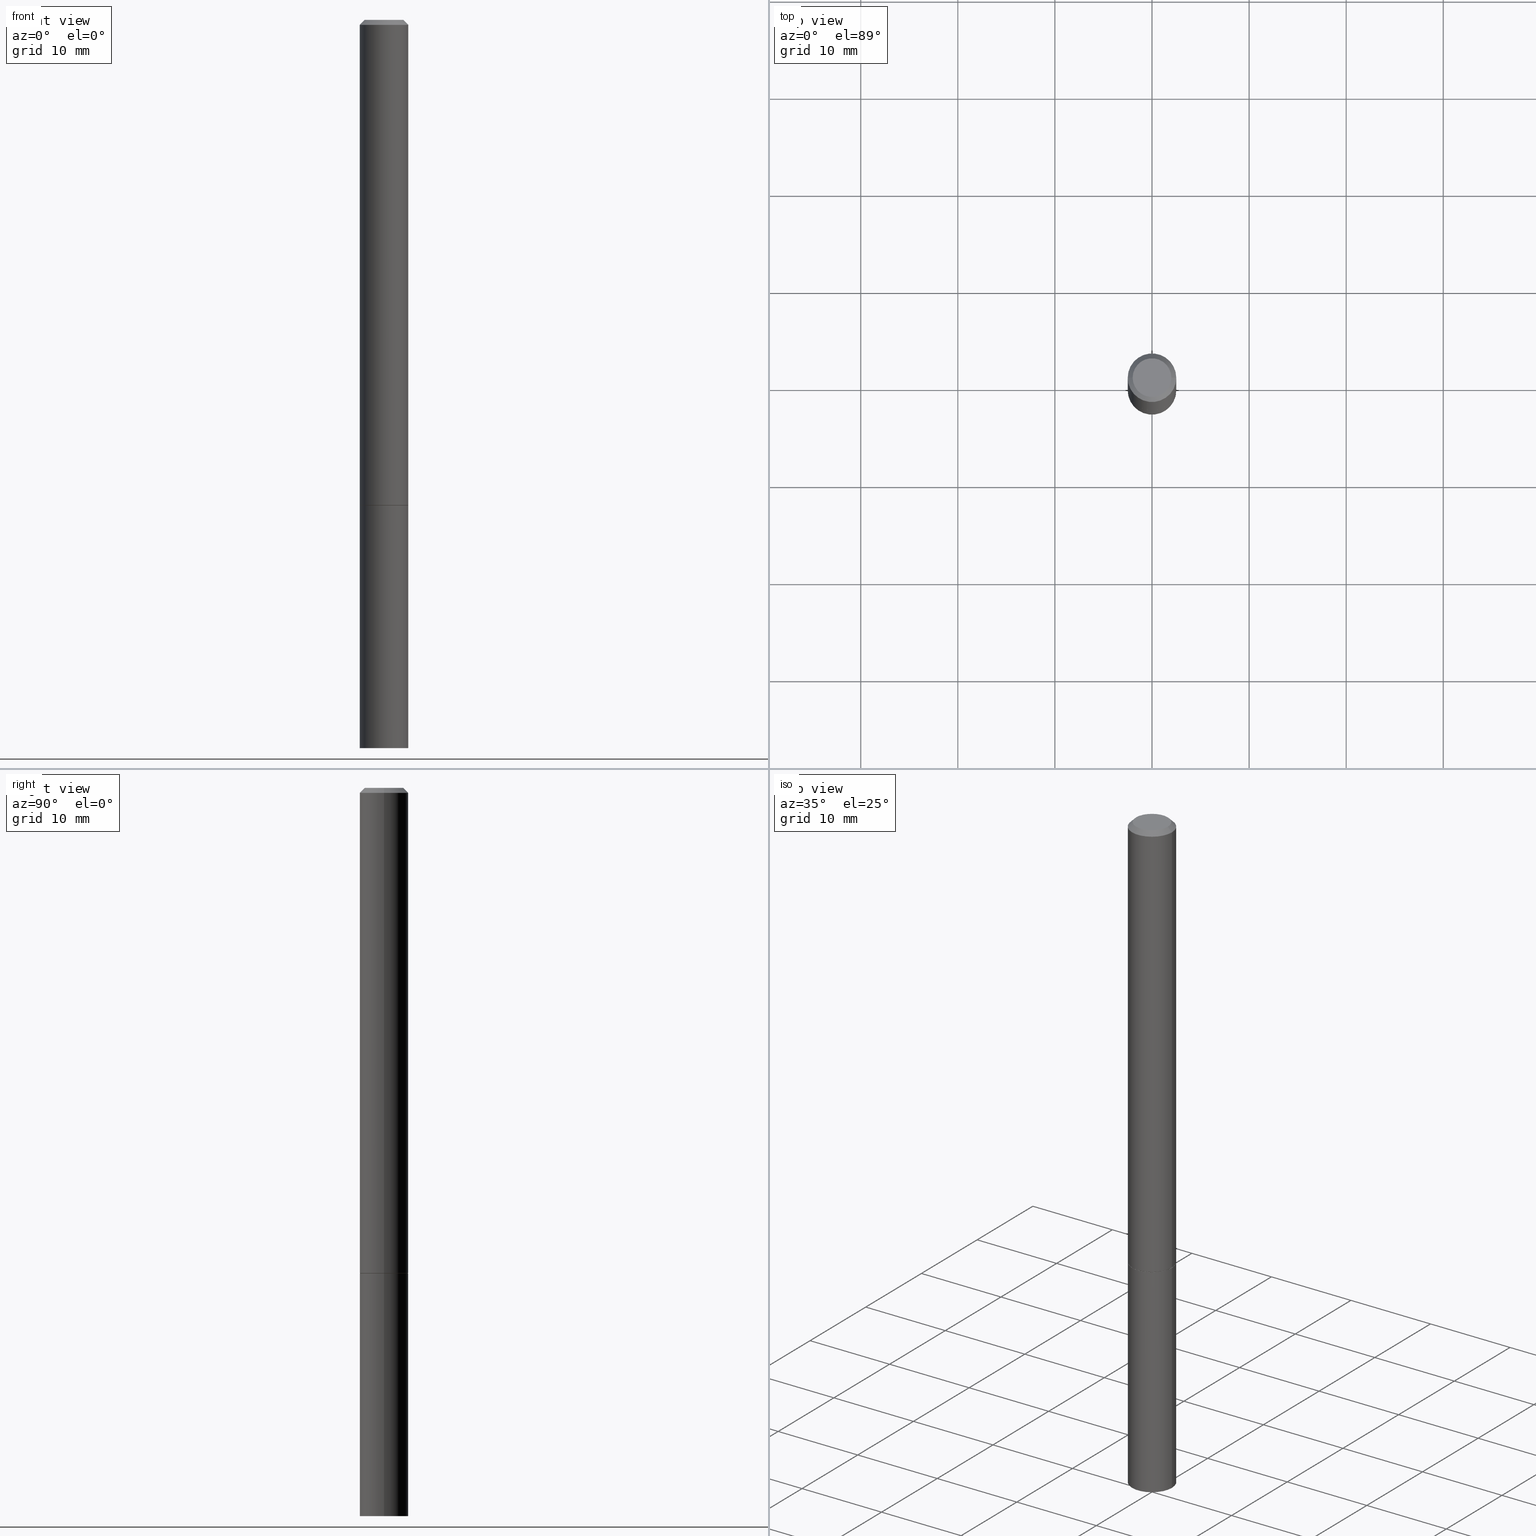
[diagram: canonical four-view strip — front | top / right | iso, engineering-drawing reading convention]
A machine part, canonical four-view strip (front | top / right | iso — engineering-drawing reading convention). The complete STEP part file that produces these views, byte-faithful:
ISO-10303-21;
HEADER;
FILE_DESCRIPTION (( 'STEP AP203' ),
    '1' );
FILE_NAME ('70553.STEP',
    '2024-02-29T03:38:05',
    ( '' ),
    ( '' ),
    'SwSTEP 2.0',
    'SolidWorks 2023',
    '' );
FILE_SCHEMA (( 'CONFIG_CONTROL_DESIGN' ));
ENDSEC;

DATA;
#1 = PERSON_AND_ORGANIZATION_ROLE ( 'design_owner' ) ;
#2 = CC_DESIGN_APPROVAL ( #165, ( #221 ) ) ;
#3 = PERSON_AND_ORGANIZATION ( #137, #82 ) ;
#4 = COORDINATED_UNIVERSAL_TIME_OFFSET ( 5, 0, .BEHIND. ) ;
#5 = EDGE_CURVE ( 'NONE', #17, #200, #208, .T. ) ;
#6 = CARTESIAN_POINT ( 'NONE',  ( -0.09844999999999987095, 6.995293233558177160E-16, -4.842691596355948437E-30 ) ) ;
#7 = APPROVAL_PERSON_ORGANIZATION ( #324, #270, #61 ) ;
#8 = CONICAL_SURFACE ( 'NONE', #211, 0.09844999999999975993, 0.7853981633974471688 ) ;
#9 = EDGE_CURVE ( 'NONE', #71, #230, #266, .T. ) ;
#10 = DIRECTION ( 'NONE',  ( 1.000000000000000000, -6.982962677686265922E-15, 0.000000000000000000 ) ) ;
#11 = EDGE_LOOP ( 'NONE', ( #204, #177, #260, #195 ) ) ;
#12 = PLANE ( 'NONE',  #60 ) ;
#13 = CC_DESIGN_PERSON_AND_ORGANIZATION_ASSIGNMENT ( #175, #40, ( #221 ) ) ;
#14 = CIRCLE ( 'NONE', #86, 0.09844999999999975993 ) ;
#15 = EDGE_CURVE ( 'NONE', #122, #71, #44, .T. ) ;
#16 = CARTESIAN_POINT ( 'NONE',  ( -0.09844999999999999585, -7.891784233068567007E-15, -1.968499999999999694 ) ) ;
#17 = VERTEX_POINT ( 'NONE', #242 ) ;
#18 = LOCAL_TIME ( 22, 38, 5.000000000000000000, #132 ) ;
#19 = LOCAL_TIME ( 22, 38, 5.000000000000000000, #196 ) ;
#20 = DIMENSIONAL_EXPONENTS ( 1.000000000000000000, 0.000000000000000000, 0.000000000000000000, 0.000000000000000000, 0.000000000000000000, 0.000000000000000000, 0.000000000000000000 ) ;
#21 = APPLICATION_PROTOCOL_DEFINITION ( 'international standard', 'config_control_design', 1994, #31 ) ;
#22 = CARTESIAN_POINT ( 'NONE',  ( 4.813905344975440714E-29, -6.872981015512730918E-15, -1.968499999999999694 ) ) ;
#23 = ADVANCED_FACE ( 'NONE', ( #212 ), #178, .T. ) ;
#24 = VECTOR ( 'NONE', #245, 39.37007874015748143 ) ;
#25 = PLANE ( 'NONE',  #138 ) ;
#26 = COORDINATED_UNIVERSAL_TIME_OFFSET ( 5, 0, .BEHIND. ) ;
#27 = DIRECTION ( 'NONE',  ( -1.000000000000000000, 6.982962677686265922E-15, -4.876176775795935793E-29 ) ) ;
#28 = CARTESIAN_POINT ( 'NONE',  ( -0.07844999999999978380, 5.827282354529171197E-16, -3.953055038153088662E-30 ) ) ;
#29 = CARTESIAN_POINT ( 'NONE',  ( -0.09844999999999999585, -7.891784233068567007E-15, -2.952799999999999869 ) ) ;
#30 = ORIENTED_EDGE ( 'NONE', *, *, #231, .F. ) ;
#31 = APPLICATION_CONTEXT ( 'configuration controlled 3d designs of mechanical parts and assemblies' ) ;
#32 = ORIENTED_EDGE ( 'NONE', *, *, #9, .F. ) ;
#33 = CIRCLE ( 'NONE', #220, 0.07844999999999978380 ) ;
#34 = FACE_OUTER_BOUND ( 'NONE', #201, .T. ) ;
#35 = ORIENTED_EDGE ( 'NONE', *, *, #231, .T. ) ;
#36 = CARTESIAN_POINT ( 'NONE',  ( 6.874726756182609764E-16, 0.09844999999999311247, -1.968500000000000139 ) ) ;
#37 = CONICAL_SURFACE ( 'NONE', #351, 0.09744999999999999496, 0.7853981633974141952 ) ;
#38 = CYLINDRICAL_SURFACE ( 'NONE', #358, 0.09844999999999987095 ) ;
#39 = EDGE_LOOP ( 'NONE', ( #67, #114 ) ) ;
#40 = PERSON_AND_ORGANIZATION_ROLE ( 'creator' ) ;
#41 = EDGE_CURVE ( 'NONE', #49, #343, #248, .T. ) ;
#42 = DIRECTION ( 'NONE',  ( 1.000000000000000000, -6.982962677686266711E-15, 0.000000000000000000 ) ) ;
#43 = CARTESIAN_POINT ( 'NONE',  ( 7.220980290903470182E-29, -1.030964609733603853E-14, -2.952799999999999869 ) ) ;
#44 = CIRCLE ( 'NONE', #188, 0.09844999999999999585 ) ;
#45 = LOCAL_TIME ( 22, 38, 5.000000000000000000, #26 ) ;
#46 = ADVANCED_BREP_SHAPE_REPRESENTATION ( '70553', ( #97, #341, #362 ), #127 ) ;
#47 = CC_DESIGN_SECURITY_CLASSIFICATION ( #315, ( #221 ) ) ;
#48 = DIRECTION ( 'NONE',  ( 1.000000000000000000, -6.982962677686265922E-15, 4.876176775795935793E-29 ) ) ;
#49 = VERTEX_POINT ( 'NONE', #28 ) ;
#50 = CARTESIAN_POINT ( 'NONE',  ( 4.811459876169255671E-29, -6.869489534173887122E-15, -1.967499999999999805 ) ) ;
#51 = EDGE_LOOP ( 'NONE', ( #117, #238, #262, #313 ) ) ;
#52 = CIRCLE ( 'NONE', #100, 0.09744999999999999496 ) ;
#53 = LOCAL_TIME ( 22, 38, 5.000000000000000000, #4 ) ;
#54 = DATE_AND_TIME ( #216, #246 ) ;
#55 = DIRECTION ( 'NONE',  ( -2.445468806185136597E-29, 3.491481338843145583E-15, 1.000000000000000000 ) ) ;
#56 = CARTESIAN_POINT ( 'NONE',  ( 0.09744999999999999496, -7.553470728453258253E-15, -1.968499999999999694 ) ) ;
#57 = DESIGN_CONTEXT ( 'detailed design', #336, 'design' ) ;
#58 = VECTOR ( 'NONE', #293, 39.37007874015748143 ) ;
#59 = EDGE_LOOP ( 'NONE', ( #108, #280 ) ) ;
#60 = AXIS2_PLACEMENT_3D ( 'NONE', #357, #151, #48 ) ;
#61 = APPROVAL_ROLE ( '' ) ;
#62 = ORIENTED_EDGE ( 'NONE', *, *, #41, .F. ) ;
#63 = FACE_OUTER_BOUND ( 'NONE', #287, .T. ) ;
#64 = CARTESIAN_POINT ( 'NONE',  ( 0.000000000000000000, 0.000000000000000000, 0.000000000000000000 ) ) ;
#65 = ORIENTED_EDGE ( 'NONE', *, *, #189, .T. ) ;
#66 = PRODUCT_DEFINITION_SHAPE ( 'NONE', 'NONE',  #308 ) ;
#67 = ORIENTED_EDGE ( 'NONE', *, *, #265, .F. ) ;
#68 = DIRECTION ( 'NONE',  ( -0.7071067811865232589, 7.493145998870265808E-15, 0.7071067811865715536 ) ) ;
#69 = CARTESIAN_POINT ( 'NONE',  ( 0.09844999999999975993, -7.452456546574685329E-16, -0.02000000000000002123 ) ) ;
#70 = CYLINDRICAL_SURFACE ( 'NONE', #292, 0.09844999999999999585 ) ;
#71 = VERTEX_POINT ( 'NONE', #29 ) ;
#72 = DIRECTION ( 'NONE',  ( 1.000000000000000000, -6.982962677686264344E-15, 0.000000000000000000 ) ) ;
#73 = EDGE_LOOP ( 'NONE', ( #284, #139, #173, #180 ) ) ;
#74 = DIRECTION ( 'NONE',  ( -2.445468806185136597E-29, 3.491481338843145583E-15, 1.000000000000000000 ) ) ;
#75 = PRODUCT_RELATED_PRODUCT_CATEGORY ( 'detail', '', ( #235 ) ) ;
#76 = DIRECTION ( 'NONE',  ( -2.445468806185136597E-29, 3.491481338843145583E-15, 1.000000000000000000 ) ) ;
#77 = PLANE ( 'NONE',  #226 ) ;
#78 = DATE_TIME_ROLE ( 'creation_date' ) ;
#79 = CARTESIAN_POINT ( 'NONE',  ( 0.09844999999999999585, -7.556962209792099682E-15, -1.967499999999999805 ) ) ;
#80 = ADVANCED_FACE ( 'NONE', ( #130 ), #77, .T. ) ;
#81 = FACE_OUTER_BOUND ( 'NONE', #51, .T. ) ;
#82 = ORGANIZATION ( 'UNSPECIFIED', 'UNSPECIFIED', '' ) ;
#83 = DIRECTION ( 'NONE',  ( 0.000000000000000000, 0.000000000000000000, 1.000000000000000000 ) ) ;
#84 = LINE ( 'NONE', #6, #215 ) ;
#85 = ORIENTED_EDGE ( 'NONE', *, *, #131, .F. ) ;
#86 = AXIS2_PLACEMENT_3D ( 'NONE', #316, #279, #194 ) ;
#87 = PLANE ( 'NONE',  #143 ) ;
#88 = VERTEX_POINT ( 'NONE', #275 ) ;
#89 = UNCERTAINTY_MEASURE_WITH_UNIT (LENGTH_MEASURE( 1.000000000000000082E-05 ), #299, 'distance_accuracy_value', 'NONE');
#90 = ORIENTED_EDGE ( 'NONE', *, *, #5, .T. ) ;
#91 = EDGE_CURVE ( 'NONE', #149, #113, #303, .T. ) ;
#92 = CARTESIAN_POINT ( 'NONE',  ( 0.09744999999999999496, -7.553470728453258253E-15, -1.968499999999999694 ) ) ;
#93 = ORIENTED_EDGE ( 'NONE', *, *, #241, .T. ) ;
#94 = VECTOR ( 'NONE', #68, 39.37007874015748854 ) ;
#95 = DIRECTION ( 'NONE',  ( 1.000000000000000000, -6.982962677686265922E-15, 0.000000000000000000 ) ) ;
#96 = ORIENTED_EDGE ( 'NONE', *, *, #131, .T. ) ;
#97 = MANIFOLD_SOLID_BREP ( 'Body-Move/Copy2[1]', #306 ) ;
#98 = CC_DESIGN_DATE_AND_TIME_ASSIGNMENT ( #363, #78, ( #308 ) ) ;
#99 = DIRECTION ( 'NONE',  ( -2.445468806185136877E-29, 3.491481338843145188E-15, 1.000000000000000000 ) ) ;
#100 = AXIS2_PLACEMENT_3D ( 'NONE', #329, #274, #361 ) ;
#101 = CARTESIAN_POINT ( 'NONE',  ( 0.09844999999999999585, -6.874726756182129545E-16, 4.800596035771099214E-30 ) ) ;
#102 = CC_DESIGN_PERSON_AND_ORGANIZATION_ASSIGNMENT ( #109, #1, ( #235 ) ) ;
#103 = DIRECTION ( 'NONE',  ( -2.445468806185136597E-29, 3.491481338843145583E-15, 1.000000000000000000 ) ) ;
#104 = DIRECTION ( 'NONE',  ( -2.445468806185136597E-29, 3.491481338843145583E-15, 1.000000000000000000 ) ) ;
#105 = DIRECTION ( 'NONE',  ( -1.000000000000000000, 6.982962677686266711E-15, 0.000000000000000000 ) ) ;
#106 = APPLICATION_PROTOCOL_DEFINITION ( 'international standard', 'config_control_design', 1994, #336 ) ;
#107 = DIRECTION ( 'NONE',  ( 1.000000000000000000, -6.982962677686266711E-15, 4.876176775795936353E-29 ) ) ;
#108 = ORIENTED_EDGE ( 'NONE', *, *, #15, .F. ) ;
#109 = PERSON_AND_ORGANIZATION ( #137, #82 ) ;
#110 = EDGE_LOOP ( 'NONE', ( #85, #90, #65, #62 ) ) ;
#111 = AXIS2_PLACEMENT_3D ( 'NONE', #359, #328, #307 ) ;
#112 = CALENDAR_DATE ( 2024, 28, 2 ) ;
#113 = VERTEX_POINT ( 'NONE', #79 ) ;
#114 = ORIENTED_EDGE ( 'NONE', *, *, #291, .F. ) ;
#115 = DATE_AND_TIME ( #135, #45 ) ;
#116 = CARTESIAN_POINT ( 'NONE',  ( 4.813905344975440714E-29, -6.872981015512730918E-15, -1.968499999999999694 ) ) ;
#117 = ORIENTED_EDGE ( 'NONE', *, *, #5, .F. ) ;
#118 = AXIS2_PLACEMENT_3D ( 'NONE', #310, #55, #164 ) ;
#119 = CARTESIAN_POINT ( 'NONE',  ( 7.220980290903470182E-29, -1.030964609733603853E-14, -2.952799999999999869 ) ) ;
#120 = DATE_AND_TIME ( #205, #53 ) ;
#121 = DIRECTION ( 'NONE',  ( 1.000000000000000000, -6.982962677686266711E-15, 4.876176775795936353E-29 ) ) ;
#122 = VERTEX_POINT ( 'NONE', #214 ) ;
#123 = CARTESIAN_POINT ( 'NONE',  ( -0.09844999999999999585, 6.995293233558186035E-16, -4.842691596355954042E-30 ) ) ;
#124 = DIRECTION ( 'NONE',  ( 1.000000000000000000, -6.982962677686265922E-15, 0.000000000000000000 ) ) ;
#125 = EDGE_CURVE ( 'NONE', #113, #348, #325, .T. ) ;
#126 = DIRECTION ( 'NONE',  ( 1.000000000000000000, -6.982962677686274599E-15, 0.000000000000000000 ) ) ;
#127 =( GEOMETRIC_REPRESENTATION_CONTEXT ( 3 ) GLOBAL_UNCERTAINTY_ASSIGNED_CONTEXT ( ( #89 ) ) GLOBAL_UNIT_ASSIGNED_CONTEXT ( ( #299, #157, #302 ) ) REPRESENTATION_CONTEXT ( 'NONE', 'WORKASPACE' ) );
#128 = CYLINDRICAL_SURFACE ( 'NONE', #156, 0.09844999999999999585 ) ;
#129 = ORIENTED_EDGE ( 'NONE', *, *, #339, .T. ) ;
#130 = FACE_OUTER_BOUND ( 'NONE', #59, .T. ) ;
#131 = EDGE_CURVE ( 'NONE', #17, #49, #33, .T. ) ;
#132 = COORDINATED_UNIVERSAL_TIME_OFFSET ( 5, 0, .BEHIND. ) ;
#133 = CIRCLE ( 'NONE', #314, 0.09844999999999999585 ) ;
#134 = CARTESIAN_POINT ( 'NONE',  ( -0.09844999999999975993, 6.176430488413482758E-16, -0.02000000000000002123 ) ) ;
#135 = CALENDAR_DATE ( 2024, 28, 2 ) ;
#136 = CARTESIAN_POINT ( 'NONE',  ( 6.874726756182850367E-16, 0.09844999999998968465, -2.952800000000000313 ) ) ;
#137 = PERSON ( 'UNSPECIFIED', 'UNSPECIFIED', 'UNSPECIFIED', ('UNSPECIFIED'), ('UNSPECIFIED'), ('UNSPECIFIED') ) ;
#138 = AXIS2_PLACEMENT_3D ( 'NONE', #366, #365, #27 ) ;
#139 = ORIENTED_EDGE ( 'NONE', *, *, #158, .T. ) ;
#140 = ORIENTED_EDGE ( 'NONE', *, *, #15, .T. ) ;
#141 = CARTESIAN_POINT ( 'NONE',  ( 0.000000000000000000, 0.000000000000000000, 0.000000000000000000 ) ) ;
#142 = ORIENTED_EDGE ( 'NONE', *, *, #332, .F. ) ;
#143 = AXIS2_PLACEMENT_3D ( 'NONE', #36, #237, #354 ) ;
#144 = PERSON_AND_ORGANIZATION_ROLE ( 'classification_officer' ) ;
#145 = FACE_OUTER_BOUND ( 'NONE', #73, .T. ) ;
#146 = ORIENTED_EDGE ( 'NONE', *, *, #176, .T. ) ;
#147 = DIRECTION ( 'NONE',  ( 1.000000000000000000, -6.982962677686264344E-15, 0.000000000000000000 ) ) ;
#148 = FACE_OUTER_BOUND ( 'NONE', #39, .T. ) ;
#149 = VERTEX_POINT ( 'NONE', #92 ) ;
#150 = EDGE_CURVE ( 'NONE', #113, #200, #286, .T. ) ;
#151 = DIRECTION ( 'NONE',  ( -2.438088387897960049E-29, 3.491481338843145188E-15, 1.000000000000000000 ) ) ;
#152 = ORIENTED_EDGE ( 'NONE', *, *, #176, .F. ) ;
#153 = ADVANCED_FACE ( 'NONE', ( #34 ), #38, .T. ) ;
#154 = FACE_OUTER_BOUND ( 'NONE', #222, .T. ) ;
#155 = APPROVAL_DATE_TIME ( #267, #270 ) ;
#156 = AXIS2_PLACEMENT_3D ( 'NONE', #159, #184, #305 ) ;
#157 =( NAMED_UNIT ( * ) PLANE_ANGLE_UNIT ( ) SI_UNIT ( $, .RADIAN. ) );
#158 = EDGE_CURVE ( 'NONE', #348, #343, #84, .T. ) ;
#159 = CARTESIAN_POINT ( 'NONE',  ( 0.000000000000000000, 0.000000000000000000, 0.000000000000000000 ) ) ;
#160 = CC_DESIGN_DATE_AND_TIME_ASSIGNMENT ( #120, #344, ( #315 ) ) ;
#161 = APPROVAL_STATUS ( 'not_yet_approved' ) ;
#162 = FACE_OUTER_BOUND ( 'NONE', #345, .T. ) ;
#163 = AXIS2_PLACEMENT_3D ( 'NONE', #116, #352, #95 ) ;
#164 = DIRECTION ( 'NONE',  ( 1.000000000000000000, -6.982962677686265922E-15, 4.876176775795935793E-29 ) ) ;
#165 = APPROVAL ( #161, 'UNSPECIFIED' ) ;
#166 = DIRECTION ( 'NONE',  ( -2.445468806185136877E-29, 3.491481338843145188E-15, 1.000000000000000000 ) ) ;
#167 = EDGE_LOOP ( 'NONE', ( #140, #225, #152, #229 ) ) ;
#168 = DIRECTION ( 'NONE',  ( -2.445468806185136597E-29, 3.491481338843145583E-15, 1.000000000000000000 ) ) ;
#169 = LENGTH_MEASURE_WITH_UNIT ( LENGTH_MEASURE( 0.02539999999999999897 ), #281 );
#170 = AXIS2_PLACEMENT_3D ( 'NONE', #330, #76, #185 ) ;
#171 = SECURITY_CLASSIFICATION_LEVEL ( 'unclassified' ) ;
#172 = DIRECTION ( 'NONE',  ( -2.445468806185136597E-29, 3.491481338843145583E-15, 1.000000000000000000 ) ) ;
#173 = ORIENTED_EDGE ( 'NONE', *, *, #189, .F. ) ;
#174 = AXIS2_PLACEMENT_3D ( 'NONE', #271, #104, #217 ) ;
#175 = PERSON_AND_ORGANIZATION ( #137, #82 ) ;
#176 = EDGE_CURVE ( 'NONE', #289, #230, #228, .T. ) ;
#177 = ORIENTED_EDGE ( 'NONE', *, *, #219, .T. ) ;
#178 = CONICAL_SURFACE ( 'NONE', #111, 0.09844999999999975993, 0.7853981633974471688 ) ;
#179 = DIRECTION ( 'NONE',  ( -2.445468806185136597E-29, 3.491481338843145583E-15, 1.000000000000000000 ) ) ;
#180 = ORIENTED_EDGE ( 'NONE', *, *, #150, .F. ) ;
#181 = CC_DESIGN_PERSON_AND_ORGANIZATION_ASSIGNMENT ( #278, #144, ( #315 ) ) ;
#182 = LINE ( 'NONE', #101, #264 ) ;
#183 = AXIS2_PLACEMENT_3D ( 'NONE', #347, #349, #42 ) ;
#184 = DIRECTION ( 'NONE',  ( -2.445468806185136597E-29, 3.491481338843145583E-15, 1.000000000000000000 ) ) ;
#185 = DIRECTION ( 'NONE',  ( 1.000000000000000000, -6.982962677686265922E-15, 0.000000000000000000 ) ) ;
#186 = CC_DESIGN_PERSON_AND_ORGANIZATION_ASSIGNMENT ( #3, #272, ( #308 ) ) ;
#187 = MECHANICAL_CONTEXT ( 'NONE', #31, 'mechanical' ) ;
#188 = AXIS2_PLACEMENT_3D ( 'NONE', #43, #296, #126 ) ;
#189 = EDGE_CURVE ( 'NONE', #200, #343, #14, .T. ) ;
#190 = APPROVAL_STATUS ( 'not_yet_approved' ) ;
#191 = CARTESIAN_POINT ( 'NONE',  ( 4.890937612370278413E-31, -6.982962677686297772E-17, -0.02000000000000002123 ) ) ;
#192 = AXIS2_PLACEMENT_3D ( 'NONE', #253, #224, #342 ) ;
#193 = COORDINATED_UNIVERSAL_TIME_OFFSET ( 5, 0, .BEHIND. ) ;
#194 = DIRECTION ( 'NONE',  ( 1.000000000000000000, -6.982962677686266711E-15, 0.000000000000000000 ) ) ;
#195 = ORIENTED_EDGE ( 'NONE', *, *, #91, .F. ) ;
#196 = COORDINATED_UNIVERSAL_TIME_OFFSET ( 5, 0, .BEHIND. ) ;
#197 = CC_DESIGN_APPROVAL ( #250, ( #308 ) ) ;
#198 = CARTESIAN_POINT ( 'NONE',  ( 0.09844999999999987095, -6.874726756182120670E-16, 4.800596035771092908E-30 ) ) ;
#199 = ADVANCED_FACE ( 'NONE', ( #145 ), #312, .T. ) ;
#200 = VERTEX_POINT ( 'NONE', #255 ) ;
#201 = EDGE_LOOP ( 'NONE', ( #353, #93, #256, #142 ) ) ;
#202 = DIRECTION ( 'NONE',  ( 1.000000000000000000, -6.982962677686274599E-15, 0.000000000000000000 ) ) ;
#203 = APPROVAL_PERSON_ORGANIZATION ( #334, #250, #276 ) ;
#204 = ORIENTED_EDGE ( 'NONE', *, *, #265, .T. ) ;
#205 = CALENDAR_DATE ( 2024, 28, 2 ) ;
#206 = ADVANCED_FACE ( 'NONE', ( #295 ), #70, .T. ) ;
#207 = FACE_OUTER_BOUND ( 'NONE', #340, .T. ) ;
#208 = LINE ( 'NONE', #69, #58 ) ;
#209 = DIRECTION ( 'NONE',  ( -2.445468806185136597E-29, 3.491481338843145583E-15, 1.000000000000000000 ) ) ;
#210 = DIRECTION ( 'NONE',  ( -2.445468806185136597E-29, 3.491481338843145583E-15, 1.000000000000000000 ) ) ;
#211 = AXIS2_PLACEMENT_3D ( 'NONE', #191, #249, #105 ) ;
#212 = FACE_OUTER_BOUND ( 'NONE', #110, .T. ) ;
#213 = CLOSED_SHELL ( 'NONE', ( #320, #199, #23, #297, #153, #234, #227, #277 ) ) ;
#214 = CARTESIAN_POINT ( 'NONE',  ( 0.09844999999999999585, -1.099711877295425267E-14, -2.952799999999999869 ) ) ;
#215 = VECTOR ( 'NONE', #283, 39.37007874015748143 ) ;
#216 = CALENDAR_DATE ( 2024, 28, 2 ) ;
#217 = DIRECTION ( 'NONE',  ( 1.000000000000000000, -6.982962677686264344E-15, 0.000000000000000000 ) ) ;
#218 = DIRECTION ( 'NONE',  ( -1.000000000000000000, 6.982962677686265922E-15, -4.876176775795935793E-29 ) ) ;
#219 = EDGE_CURVE ( 'NONE', #88, #348, #356, .T. ) ;
#220 = AXIS2_PLACEMENT_3D ( 'NONE', #64, #172, #318 ) ;
#221 = PRODUCT_DEFINITION_FORMATION_WITH_SPECIFIED_SOURCE ( 'ANY', '', #235, .NOT_KNOWN. ) ;
#222 = EDGE_LOOP ( 'NONE', ( #32, #129, #240, #30 ) ) ;
#223 = APPROVAL_DATE_TIME ( #54, #250 ) ;
#224 = DIRECTION ( 'NONE',  ( -2.445468806185136597E-29, 3.491481338843145583E-15, 1.000000000000000000 ) ) ;
#225 = ORIENTED_EDGE ( 'NONE', *, *, #9, .T. ) ;
#226 = AXIS2_PLACEMENT_3D ( 'NONE', #136, #251, #218 ) ;
#227 = ADVANCED_FACE ( 'NONE', ( #148 ), #12, .F. ) ;
#228 = CIRCLE ( 'NONE', #309, 0.09844999999999999585 ) ;
#229 = ORIENTED_EDGE ( 'NONE', *, *, #243, .F. ) ;
#230 = VERTEX_POINT ( 'NONE', #16 ) ;
#231 = EDGE_CURVE ( 'NONE', #230, #289, #337, .T. ) ;
#232 = APPROVAL_DATE_TIME ( #115, #165 ) ;
#233 = ORIENTED_EDGE ( 'NONE', *, *, #91, .T. ) ;
#234 = ADVANCED_FACE ( 'NONE', ( #207 ), #258, .T. ) ;
#235 = PRODUCT ( '70553', '70553', '', ( #187 ) ) ;
#236 = AXIS2_PLACEMENT_3D ( 'NONE', #50, #179, #124 ) ;
#237 = DIRECTION ( 'NONE',  ( 2.438088387897960049E-29, -3.491481338843145188E-15, -1.000000000000000000 ) ) ;
#238 = ORIENTED_EDGE ( 'NONE', *, *, #311, .F. ) ;
#239 = CARTESIAN_POINT ( 'NONE',  ( 4.813905344975440714E-29, -6.872981015512730918E-15, -1.968499999999999694 ) ) ;
#240 = ORIENTED_EDGE ( 'NONE', *, *, #243, .T. ) ;
#241 = EDGE_CURVE ( 'NONE', #348, #113, #300, .T. ) ;
#242 = CARTESIAN_POINT ( 'NONE',  ( 0.07844999999999978380, -6.417258612913219469E-16, 4.159044147803929809E-30 ) ) ;
#243 = EDGE_CURVE ( 'NONE', #122, #289, #182, .T. ) ;
#244 = CARTESIAN_POINT ( 'NONE',  ( 0.09844999999999999585, -7.560453691130944267E-15, -1.968499999999999694 ) ) ;
#245 = DIRECTION ( 'NONE',  ( -0.7071067811865466846, 2.468850131082247989E-15, -0.7071067811865483499 ) ) ;
#246 = LOCAL_TIME ( 22, 38, 5.000000000000000000, #193 ) ;
#247 = CALENDAR_DATE ( 2024, 28, 2 ) ;
#248 = LINE ( 'NONE', #134, #24 ) ;
#249 = DIRECTION ( 'NONE',  ( 2.445468806185136597E-29, -3.491481338843145583E-15, -1.000000000000000000 ) ) ;
#250 = APPROVAL ( #190, 'UNSPECIFIED' ) ;
#251 = DIRECTION ( 'NONE',  ( 2.438088387897960049E-29, -3.491481338843145188E-15, -1.000000000000000000 ) ) ;
#252 = CIRCLE ( 'NONE', #118, 0.07844999999999978380 ) ;
#253 = CARTESIAN_POINT ( 'NONE',  ( 0.000000000000000000, 0.000000000000000000, 0.000000000000000000 ) ) ;
#254 = ORIENTED_EDGE ( 'NONE', *, *, #311, .T. ) ;
#255 = CARTESIAN_POINT ( 'NONE',  ( 0.09844999999999975993, -7.452456546574685329E-16, -0.02000000000000002123 ) ) ;
#256 = ORIENTED_EDGE ( 'NONE', *, *, #150, .T. ) ;
#257 = ADVANCED_FACE ( 'NONE', ( #154 ), #128, .T. ) ;
#258 = CONICAL_SURFACE ( 'NONE', #327, 0.09744999999999999496, 0.7853981633974141952 ) ;
#259 = CARTESIAN_POINT ( 'NONE',  ( 4.813905344975440714E-29, -6.872981015512730918E-15, -1.968499999999999694 ) ) ;
#260 = ORIENTED_EDGE ( 'NONE', *, *, #125, .F. ) ;
#261 = CARTESIAN_POINT ( 'NONE',  ( -0.09744999999999999496, -6.180557119514513816E-15, -1.968499999999999694 ) ) ;
#262 = ORIENTED_EDGE ( 'NONE', *, *, #41, .T. ) ;
#263 = VECTOR ( 'NONE', #99, 39.37007874015748143 ) ;
#264 = VECTOR ( 'NONE', #298, 39.37007874015748143 ) ;
#265 = EDGE_CURVE ( 'NONE', #149, #88, #52, .T. ) ;
#266 = LINE ( 'NONE', #123, #263 ) ;
#267 = DATE_AND_TIME ( #112, #19 ) ;
#268 = CARTESIAN_POINT ( 'NONE',  ( 0.000000000000000000, 0.000000000000000000, 0.000000000000000000 ) ) ;
#269 = CIRCLE ( 'NONE', #174, 0.09744999999999999496 ) ;
#270 = APPROVAL ( #290, 'UNSPECIFIED' ) ;
#271 = CARTESIAN_POINT ( 'NONE',  ( 4.813905344975440714E-29, -6.872981015512730918E-15, -1.968499999999999694 ) ) ;
#272 = PERSON_AND_ORGANIZATION_ROLE ( 'creator' ) ;
#273 = APPROVAL_ROLE ( '' ) ;
#274 = DIRECTION ( 'NONE',  ( -2.445468806185136597E-29, 3.491481338843145583E-15, 1.000000000000000000 ) ) ;
#275 = CARTESIAN_POINT ( 'NONE',  ( -0.09744999999999999496, -6.175258665166290625E-15, -1.968499999999999694 ) ) ;
#276 = APPROVAL_ROLE ( '' ) ;
#277 = ADVANCED_FACE ( 'NONE', ( #162 ), #25, .F. ) ;
#278 = PERSON_AND_ORGANIZATION ( #137, #82 ) ;
#279 = DIRECTION ( 'NONE',  ( -2.445468806185136597E-29, 3.491481338843145583E-15, 1.000000000000000000 ) ) ;
#280 = ORIENTED_EDGE ( 'NONE', *, *, #339, .F. ) ;
#281 =( LENGTH_UNIT ( ) NAMED_UNIT ( * ) SI_UNIT ( $, .METRE. ) );
#282 = PERSON_AND_ORGANIZATION_ROLE ( 'design_supplier' ) ;
#283 = DIRECTION ( 'NONE',  ( -2.445468806185136877E-29, 3.491481338843145188E-15, 1.000000000000000000 ) ) ;
#284 = ORIENTED_EDGE ( 'NONE', *, *, #125, .T. ) ;
#285 = VECTOR ( 'NONE', #166, 39.37007874015748143 ) ;
#286 = LINE ( 'NONE', #198, #285 ) ;
#287 = EDGE_LOOP ( 'NONE', ( #146, #35 ) ) ;
#288 = CARTESIAN_POINT ( 'NONE',  ( -0.09844999999999998197, -2.770130257119553156E-15, -1.967499999999999805 ) ) ;
#289 = VERTEX_POINT ( 'NONE', #244 ) ;
#290 = APPROVAL_STATUS ( 'not_yet_approved' ) ;
#291 = EDGE_CURVE ( 'NONE', #88, #149, #269, .T. ) ;
#292 = AXIS2_PLACEMENT_3D ( 'NONE', #268, #74, #121 ) ;
#293 = DIRECTION ( 'NONE',  ( 0.7071067811865466846, -7.319954787623252890E-15, -0.7071067811865483499 ) ) ;
#294 = CC_DESIGN_APPROVAL ( #270, ( #315 ) ) ;
#295 = FACE_OUTER_BOUND ( 'NONE', #167, .T. ) ;
#296 = DIRECTION ( 'NONE',  ( -2.445468806185136597E-29, 3.491481338843145583E-15, 1.000000000000000000 ) ) ;
#297 = ADVANCED_FACE ( 'NONE', ( #81 ), #8, .T. ) ;
#298 = DIRECTION ( 'NONE',  ( -2.445468806185136877E-29, 3.491481338843145188E-15, 1.000000000000000000 ) ) ;
#299 =( CONVERSION_BASED_UNIT ( 'INCH', #169 ) LENGTH_UNIT ( ) NAMED_UNIT ( #20 ) );
#300 = CIRCLE ( 'NONE', #236, 0.09844999999999999585 ) ;
#301 = FACE_OUTER_BOUND ( 'NONE', #11, .T. ) ;
#302 =( NAMED_UNIT ( * ) SI_UNIT ( $, .STERADIAN. ) SOLID_ANGLE_UNIT ( ) );
#303 = LINE ( 'NONE', #56, #335 ) ;
#304 = PERSON_AND_ORGANIZATION ( #137, #82 ) ;
#305 = DIRECTION ( 'NONE',  ( 1.000000000000000000, -6.982962677686266711E-15, 4.876176775795936353E-29 ) ) ;
#306 = CLOSED_SHELL ( 'NONE', ( #206, #80, #350, #257 ) ) ;
#307 = DIRECTION ( 'NONE',  ( -1.000000000000000000, 6.982962677686266711E-15, 0.000000000000000000 ) ) ;
#308 = PRODUCT_DEFINITION ( 'UNKNOWN', '', #221, #57 ) ;
#309 = AXIS2_PLACEMENT_3D ( 'NONE', #259, #346, #10 ) ;
#310 = CARTESIAN_POINT ( 'NONE',  ( 0.000000000000000000, 0.000000000000000000, 0.000000000000000000 ) ) ;
#311 = EDGE_CURVE ( 'NONE', #49, #17, #252, .T. ) ;
#312 = CYLINDRICAL_SURFACE ( 'NONE', #192, 0.09844999999999987095 ) ;
#313 = ORIENTED_EDGE ( 'NONE', *, *, #332, .T. ) ;
#314 = AXIS2_PLACEMENT_3D ( 'NONE', #119, #209, #202 ) ;
#315 = SECURITY_CLASSIFICATION ( '', '', #171 ) ;
#316 = CARTESIAN_POINT ( 'NONE',  ( 4.890937612370278413E-31, -6.982962677686297772E-17, -0.02000000000000002123 ) ) ;
#317 = ORIENTED_EDGE ( 'NONE', *, *, #219, .F. ) ;
#318 = DIRECTION ( 'NONE',  ( 1.000000000000000000, -6.982962677686265922E-15, 4.876176775795935793E-29 ) ) ;
#319 = ORIENTED_EDGE ( 'NONE', *, *, #291, .T. ) ;
#320 = ADVANCED_FACE ( 'NONE', ( #301 ), #37, .T. ) ;
#321 = CARTESIAN_POINT ( 'NONE',  ( -0.09844999999999975993, 6.176430488413482758E-16, -0.02000000000000002123 ) ) ;
#322 = APPROVAL_PERSON_ORGANIZATION ( #304, #165, #273 ) ;
#323 = ORIENTED_EDGE ( 'NONE', *, *, #241, .F. ) ;
#324 = PERSON_AND_ORGANIZATION ( #137, #82 ) ;
#325 = CIRCLE ( 'NONE', #170, 0.09844999999999999585 ) ;
#326 = SHAPE_DEFINITION_REPRESENTATION ( #66, #46 ) ;
#327 = AXIS2_PLACEMENT_3D ( 'NONE', #239, #210, #72 ) ;
#328 = DIRECTION ( 'NONE',  ( 2.445468806185136597E-29, -3.491481338843145583E-15, -1.000000000000000000 ) ) ;
#329 = CARTESIAN_POINT ( 'NONE',  ( 4.813905344975440714E-29, -6.872981015512730918E-15, -1.968499999999999694 ) ) ;
#330 = CARTESIAN_POINT ( 'NONE',  ( 4.811459876169255671E-29, -6.869489534173887122E-15, -1.967499999999999805 ) ) ;
#331 = CIRCLE ( 'NONE', #183, 0.09844999999999975993 ) ;
#332 = EDGE_CURVE ( 'NONE', #343, #200, #331, .T. ) ;
#333 = DIRECTION ( 'NONE',  ( 0.7071067811865232589, -2.468850131082003836E-15, 0.7071067811865715536 ) ) ;
#334 = PERSON_AND_ORGANIZATION ( #137, #82 ) ;
#335 = VECTOR ( 'NONE', #333, 39.37007874015748854 ) ;
#336 = APPLICATION_CONTEXT ( 'configuration controlled 3d designs of mechanical parts and assemblies' ) ;
#337 = CIRCLE ( 'NONE', #163, 0.09844999999999999585 ) ;
#338 = DIRECTION ( 'NONE',  ( 1.000000000000000000, 0.000000000000000000, 0.000000000000000000 ) ) ;
#339 = EDGE_CURVE ( 'NONE', #71, #122, #133, .T. ) ;
#340 = EDGE_LOOP ( 'NONE', ( #317, #319, #233, #323 ) ) ;
#341 = MANIFOLD_SOLID_BREP ( 'Body-Move/Copy2[2]', #213 ) ;
#342 = DIRECTION ( 'NONE',  ( 1.000000000000000000, -6.982962677686266711E-15, 4.876176775795936353E-29 ) ) ;
#343 = VERTEX_POINT ( 'NONE', #321 ) ;
#344 = DATE_TIME_ROLE ( 'classification_date' ) ;
#345 = EDGE_LOOP ( 'NONE', ( #254, #96 ) ) ;
#346 = DIRECTION ( 'NONE',  ( -2.445468806185136597E-29, 3.491481338843145583E-15, 1.000000000000000000 ) ) ;
#347 = CARTESIAN_POINT ( 'NONE',  ( 4.890937612370278413E-31, -6.982962677686297772E-17, -0.02000000000000002123 ) ) ;
#348 = VERTEX_POINT ( 'NONE', #288 ) ;
#349 = DIRECTION ( 'NONE',  ( -2.445468806185136597E-29, 3.491481338843145583E-15, 1.000000000000000000 ) ) ;
#350 = ADVANCED_FACE ( 'NONE', ( #63 ), #87, .F. ) ;
#351 = AXIS2_PLACEMENT_3D ( 'NONE', #22, #103, #147 ) ;
#352 = DIRECTION ( 'NONE',  ( -2.445468806185136597E-29, 3.491481338843145583E-15, 1.000000000000000000 ) ) ;
#353 = ORIENTED_EDGE ( 'NONE', *, *, #158, .F. ) ;
#354 = DIRECTION ( 'NONE',  ( -1.000000000000000000, 6.982962677686265922E-15, -4.876176775795935793E-29 ) ) ;
#355 = PERSON_AND_ORGANIZATION ( #137, #82 ) ;
#356 = LINE ( 'NONE', #261, #94 ) ;
#357 = CARTESIAN_POINT ( 'NONE',  ( 4.813905344975440714E-29, -6.872981015512730918E-15, -1.968499999999999694 ) ) ;
#358 = AXIS2_PLACEMENT_3D ( 'NONE', #141, #168, #107 ) ;
#359 = CARTESIAN_POINT ( 'NONE',  ( 4.890937612370278413E-31, -6.982962677686297772E-17, -0.02000000000000002123 ) ) ;
#360 = CARTESIAN_POINT ( 'NONE',  ( 0.000000000000000000, 0.000000000000000000, 0.000000000000000000 ) ) ;
#361 = DIRECTION ( 'NONE',  ( 1.000000000000000000, -6.982962677686264344E-15, 0.000000000000000000 ) ) ;
#362 = AXIS2_PLACEMENT_3D ( 'NONE', #360, #83, #338 ) ;
#363 = DATE_AND_TIME ( #247, #18 ) ;
#364 = CC_DESIGN_PERSON_AND_ORGANIZATION_ASSIGNMENT ( #355, #282, ( #221 ) ) ;
#365 = DIRECTION ( 'NONE',  ( 2.438088387897960049E-29, -3.491481338843145188E-15, -1.000000000000000000 ) ) ;
#366 = CARTESIAN_POINT ( 'NONE',  ( 5.478134220644860623E-16, 0.07844999999999978380, -2.739067110322439679E-16 ) ) ;
ENDSEC;
END-ISO-10303-21;
